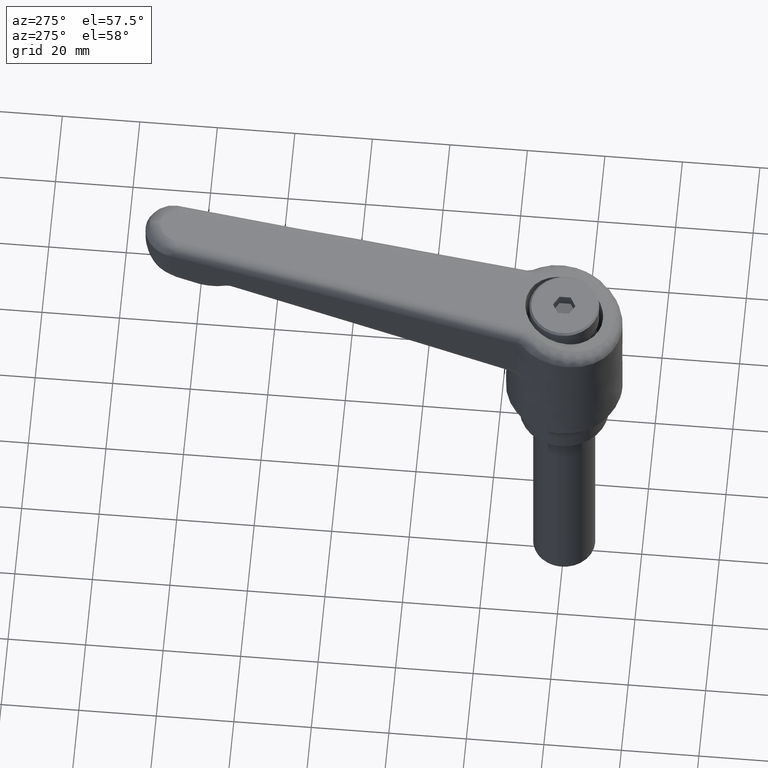
[diagram: clean part render]
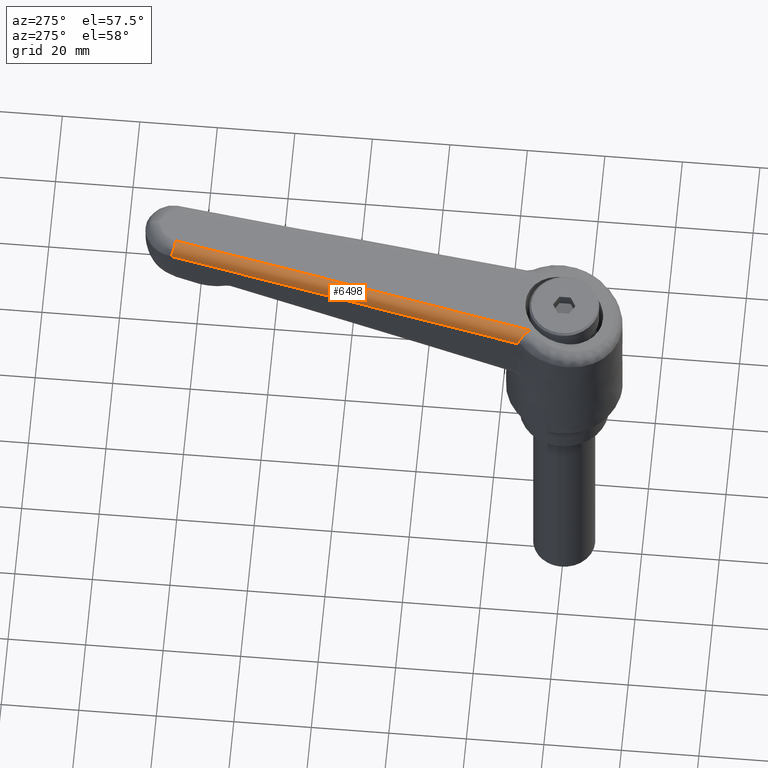
[diagram: same view with one face highlighted and labeled with its STEP entity id]
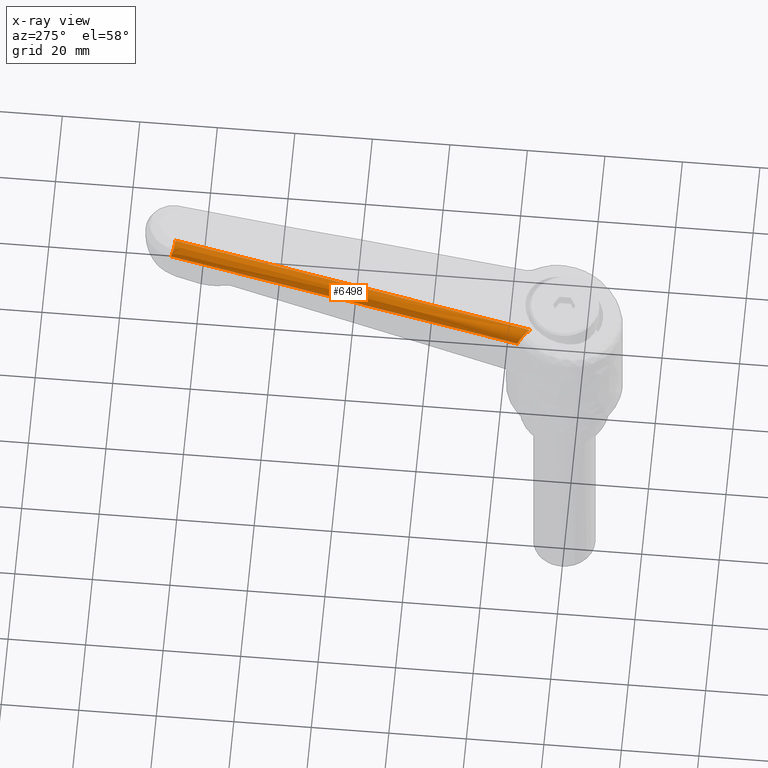
[diagram: x-ray of the same camera — body ghosted, the highlighted face saturated]
A machine part, auxiliary view. The second image highlights one B-rep face of the part: STEP entity #6498.
The next image is the same camera in x-ray: the body ghosted, the highlighted face saturated — about 0% of this face is hidden behind the body in this view.
In plain terms, the highlighted face is a freeform B-spline surface patch.
Its self-contained STEP definition (entity closure, byte-faithful):
#4322=CARTESIAN_POINT('',(11.131691859817380,10.963863716208801,47.784693627170903));
#4323=VERTEX_POINT('',#4322);
#4429=CARTESIAN_POINT('',(8.123781733177820,8.047932275665861,50.114911370818703));
#4430=VERTEX_POINT('',#4429);
#4467=CARTESIAN_POINT('',(11.131691859817400,10.963863716208699,47.784693627170903));
#4468=CARTESIAN_POINT('',(11.074934569323361,10.966060034605499,48.002272280851543));
#4469=CARTESIAN_POINT('',(11.002879536097611,10.943873890990201,48.210074590103481));
#4470=CARTESIAN_POINT('',(10.894892967493490,10.887940876641389,48.458433643219081));
#4471=CARTESIAN_POINT('',(10.872386991577500,10.875326932910310,48.507528081307207));
#4472=CARTESIAN_POINT('',(10.825538393414300,10.847234986649550,48.604553267724782));
#4473=CARTESIAN_POINT('',(10.801131764579470,10.831713795976491,48.652602986527711));
#4474=CARTESIAN_POINT('',(10.725529599802870,10.781092296270790,48.794174124822341));
#4475=CARTESIAN_POINT('',(10.672610704243169,10.742403077661910,48.883963934997936));
#4476=CARTESIAN_POINT('',(10.562037280338551,10.656005231671870,49.055065638704910));
#4477=CARTESIAN_POINT('',(10.504380883864560,10.608292500556329,49.136373875288861));
#4478=CARTESIAN_POINT('',(10.384419997193239,10.504334144145430,49.290852297727348));
#4479=CARTESIAN_POINT('',(10.322002869487701,10.447981825923630,49.364140094505132));
#4480=CARTESIAN_POINT('',(10.128355914495071,10.267093758528301,49.571146970376127));
#4481=CARTESIAN_POINT('',(9.994710415238421,10.134560165737510,49.688095811089461));
#4482=CARTESIAN_POINT('',(9.787554780056041,9.921004038252539,49.836147312361142));
#4483=CARTESIAN_POINT('',(9.717378934976965,9.847331999659920,49.880888882877152));
#4484=CARTESIAN_POINT('',(9.610372188331109,9.733297213321920,49.941275846894953));
#4485=CARTESIAN_POINT('',(9.574413778022029,9.694696761334271,49.960273377016897));
#4486=CARTESIAN_POINT('',(9.502576473435738,9.617077718327288,49.995730040360947));
#4487=CARTESIAN_POINT('',(9.466613094341563,9.577969473564645,50.012238718011552));
#4488=CARTESIAN_POINT('',(9.286538184722291,9.381030776604009,50.088918537623563));
#4489=CARTESIAN_POINT('',(9.141651929395630,9.219049022336055,50.131644720771732));
#4490=CARTESIAN_POINT('',(8.922447386565303,8.970702701902326,50.170329358709949));
#4491=CARTESIAN_POINT('',(8.848826204238669,8.886740309906260,50.178968248152060));
#4492=CARTESIAN_POINT('',(8.702211868884428,8.718705346206425,50.187792141756027));
#4493=CARTESIAN_POINT('',(8.629261281948832,8.634685750549961,50.188010687592161));
#4494=CARTESIAN_POINT('',(8.483929995830675,8.466734859569316,50.180490230182478));
#4495=CARTESIAN_POINT('',(8.411549562230173,8.382803420105585,50.172750056287519));
#4496=CARTESIAN_POINT('',(8.303321580059306,8.257032110203218,50.155358524504081));
#4497=CARTESIAN_POINT('',(8.249293566002866,8.194177789126067,50.145215529704977));
#4498=CARTESIAN_POINT('',(8.195381125132597,8.131380662735170,50.132920655850093));
#4499=CARTESIAN_POINT('',(8.159463854545166,8.089529693272702,50.124246906627803));
#4500=CARTESIAN_POINT('',(8.141464667603005,8.068566980528935,50.119655574370668));
#4501=CARTESIAN_POINT('',(8.123781733177820,8.047932275665861,50.114911370818703));
#4502=B_SPLINE_CURVE_WITH_KNOTS('',3,(#4467,#4468,#4469,#4470,#4471,#4472,#4473,#4474,#4475,#4476,#4477,#4478,#4479,#4480,#4481,#4482,#4483,#4484,#4485,#4486,#4487,#4488,#4489,#4490,#4491,#4492,#4493,#4494,#4495,#4496,#4497,#4498,#4499,#4500,#4501),.UNSPECIFIED.,.F.,.U.,(4,2,2,2,2,2,2,2,2,2,2,2,2,2,2,1,2,4),(0.0,0.124999999999999,0.156249999999999,0.187500000000000,0.250000000000001,0.312500000000002,0.375000000000003,0.500000000000004,0.562500000000005,0.593750000000004,0.625000000000004,0.750000000000003,0.812500000000002,0.875000000000002,0.937500000000001,0.968750000000001,0.984375000000000,1.0),.UNSPECIFIED.);
#4503=EDGE_CURVE('',#4323,#4430,#4502,.T.);
#6452=CARTESIAN_POINT('',(103.110351121896400,7.402899602030557,72.357540226077631));
#6453=CARTESIAN_POINT('',(6.691514119781455,11.133987954909390,46.489062857876377));
#6454=CARTESIAN_POINT('',(102.244788204225470,7.549528949760055,75.604876964526753));
#6455=CARTESIAN_POINT('',(5.825951202110447,11.280617302638879,49.736399596325505));
#6456=CARTESIAN_POINT('',(102.185241931471770,4.196341645216199,75.343181788814306));
#6457=CARTESIAN_POINT('',(5.766404929356776,7.927429998095022,49.474704420613030));
#6465=(BOUNDED_SURFACE()B_SPLINE_SURFACE(1,2,((#6452,#6454,#6456),(#6453,#6455,#6457)),.UNSPECIFIED.,.F.,.F.,.U.)B_SPLINE_SURFACE_WITH_KNOTS((2,2),(3,3),(0.0,99.898404744453003),(0.0,5.377007117174437),.UNSPECIFIED.)GEOMETRIC_REPRESENTATION_ITEM()RATIONAL_B_SPLINE_SURFACE(((1.0,0.664403077862661,0.996452787082205),(1.0,0.664403077862661,0.996452787082205)))REPRESENTATION_ITEM('')SURFACE());
#6466=CARTESIAN_POINT('',(100.790008006386000,7.494385038449460,71.839372092725299));
#6467=VERTEX_POINT('',#6466);
#6468=CARTESIAN_POINT('',(11.131691859817380,10.963863716208801,47.784693627170903));
#6469=CARTESIAN_POINT('',(100.790008006386000,7.494385038449460,71.839372092725299));
#6470=QUASI_UNIFORM_CURVE('',1,(#6468,#6469),.UNSPECIFIED.,.F.,.U.);
#6471=EDGE_CURVE('',#4323,#6467,#6470,.T.);
#6472=ORIENTED_EDGE('',*,*,#6471,.F.);
#6473=ORIENTED_EDGE('',*,*,#4503,.T.);
#6474=CARTESIAN_POINT('',(99.896618855952298,4.496628667928765,74.736900537458794));
#6475=VERTEX_POINT('',#6474);
#6476=CARTESIAN_POINT('',(99.896618855952298,4.496628667928765,74.736900537458794));
#6477=CARTESIAN_POINT('',(8.123781733177820,8.047932275665861,50.114911370818703));
#6478=QUASI_UNIFORM_CURVE('',1,(#6476,#6477),.UNSPECIFIED.,.F.,.U.);
#6479=EDGE_CURVE('',#6475,#4430,#6478,.T.);
#6480=ORIENTED_EDGE('',*,*,#6479,.F.);
#6481=CARTESIAN_POINT('',(99.896618855952298,4.496628667928765,74.736900537458808));
#6482=CARTESIAN_POINT('',(99.941762688571089,5.747209810523179,74.749012301598711));
#6483=CARTESIAN_POINT('',(100.203975825275190,6.627062784568371,73.898576607574469));
#6484=CARTESIAN_POINT('',(100.466188961979210,7.506915758613562,73.048140913550228));
#6485=CARTESIAN_POINT('',(100.790008006386000,7.494385038449411,71.839372092725299));
#6493=(BOUNDED_CURVE()B_SPLINE_CURVE(2,(#6481,#6482,#6483,#6484,#6485),.UNSPECIFIED.,.F.,.U.)B_SPLINE_CURVE_WITH_KNOTS((3,2,3),(0.0,0.500000000000000,1.0),.UNSPECIFIED.)CURVE()GEOMETRIC_REPRESENTATION_ITEM()RATIONAL_B_SPLINE_CURVE((1.0,0.922918004613778,1.0,0.922918004613778,1.0))REPRESENTATION_ITEM(''));
#6494=EDGE_CURVE('',#6475,#6467,#6493,.T.);
#6495=ORIENTED_EDGE('',*,*,#6494,.T.);
#6496=EDGE_LOOP('',(#6472,#6473,#6480,#6495));
#6497=FACE_OUTER_BOUND('',#6496,.T.);
#6498=ADVANCED_FACE('',(#6497),#6465,.T.);